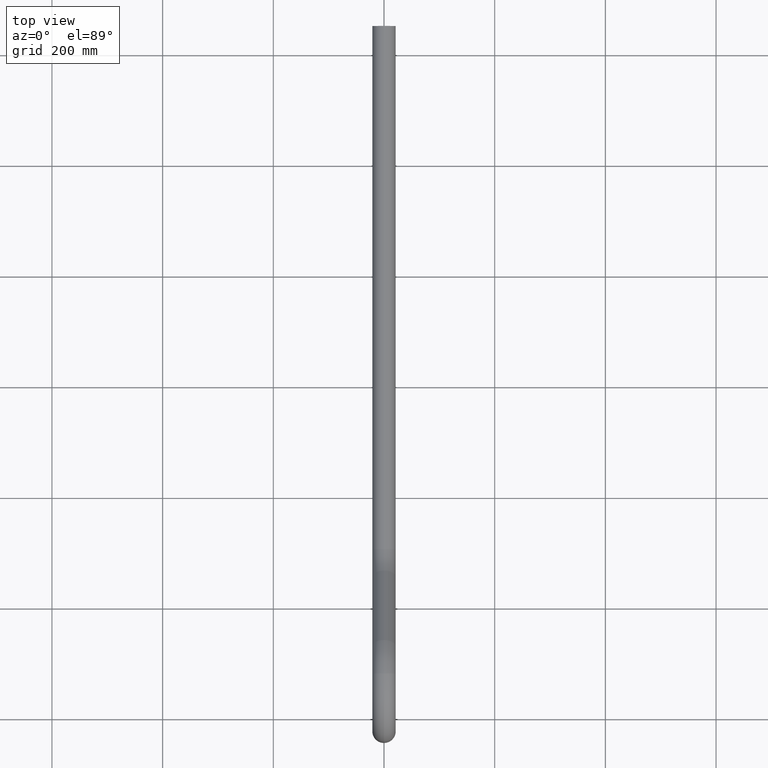
[diagram: clean part render]
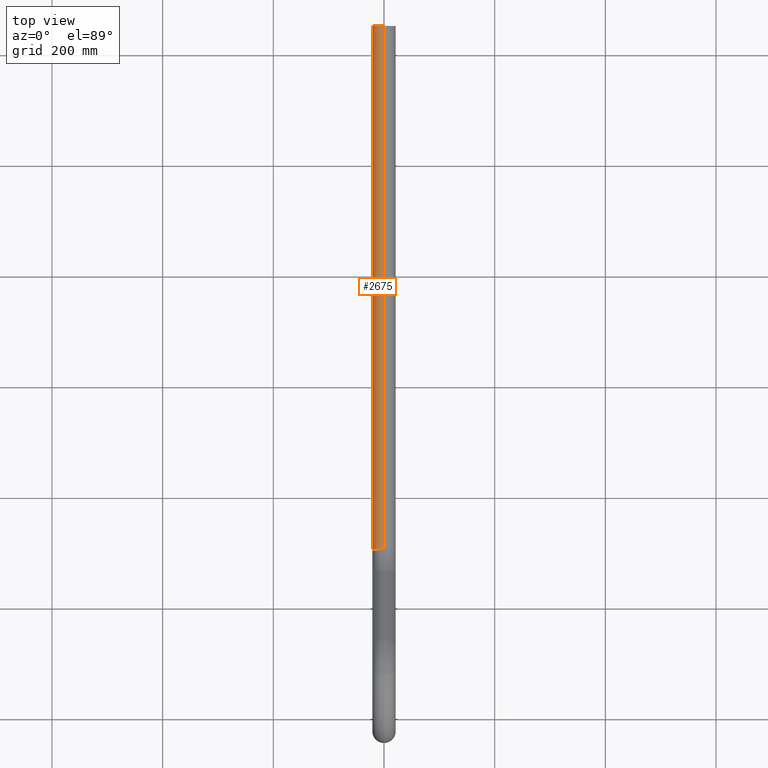
[diagram: same view with one face highlighted and labeled with its STEP entity id]
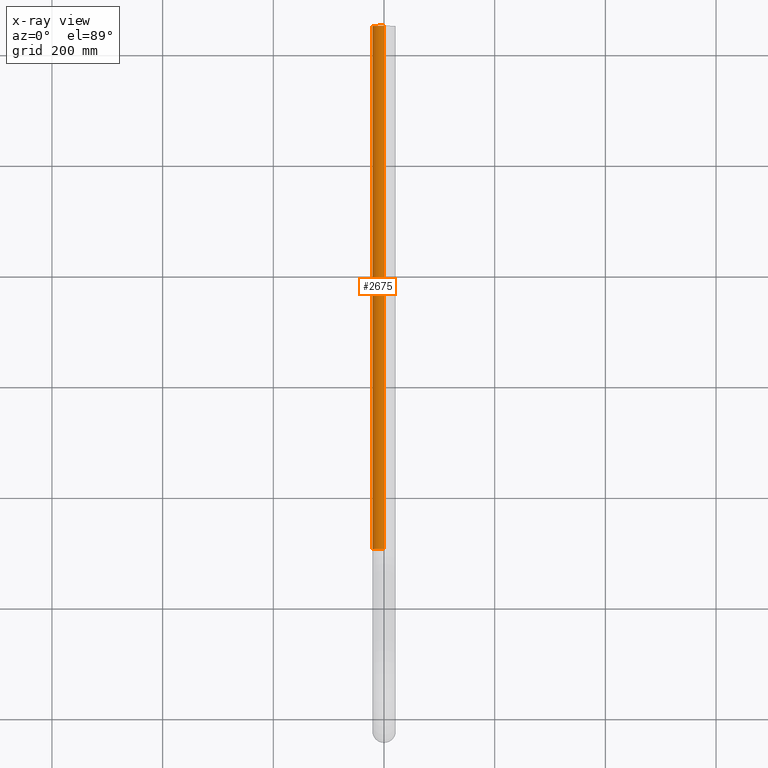
[diagram: x-ray of the same camera — body ghosted, the highlighted face saturated]
A machine part, top view. The second image highlights one B-rep face of the part: STEP entity #2675.
The next image is the same camera in x-ray: the body ghosted, the highlighted face saturated — about 0% of this face is hidden behind the body in this view.
In plain terms, the highlighted cylindrical surface (edge-blend (fillet) strip) has radius 21.2 mm, axis along (0, 1, 0).
Its self-contained STEP definition (entity closure, byte-faithful):
#379 = CIRCLE ( 'NONE', #2459, 21.19999999999999600 ) ;
#532 = CYLINDRICAL_SURFACE ( 'NONE', #872, 21.19999999999999600 ) ;
#595 = CIRCLE ( 'NONE', #6826, 21.19999999999999600 ) ;
#780 = ORIENTED_EDGE ( 'NONE', *, *, #8191, .F. ) ;
#872 = AXIS2_PLACEMENT_3D ( 'NONE', #968, #3436, #3611 ) ;
#959 = CARTESIAN_POINT ( 'NONE',  ( 2.596251214192391500E-015, 305.5949192431106700, 53.19999999999999600 ) ) ;
#968 = CARTESIAN_POINT ( 'NONE',  ( 0.0000000000000000000, 305.5949192431106700, 74.39999999999999100 ) ) ;
#1345 = CARTESIAN_POINT ( 'NONE',  ( 0.0000000000000000000, 1250.589999999998100, 95.60000000000003700 ) ) ;
#1700 = FACE_OUTER_BOUND ( 'NONE', #10590, .T. ) ;
#2459 = AXIS2_PLACEMENT_3D ( 'NONE', #9568, #5390, #2951 ) ;
#2675 = ADVANCED_FACE ( 'NONE', ( #1700 ), #532, .T. ) ;
#2951 = DIRECTION ( 'NONE',  ( 1.000000000000000000, 0.0000000000000000000, 0.0000000000000000000 ) ) ;
#3019 = EDGE_CURVE ( 'NONE', #6791, #10197, #9199, .T. ) ;
#3391 = ORIENTED_EDGE ( 'NONE', *, *, #3019, .T. ) ;
#3436 = DIRECTION ( 'NONE',  ( 0.0000000000000000000, 1.000000000000000000, 4.405669857042791700E-017 ) ) ;
#3526 = CARTESIAN_POINT ( 'NONE',  ( 2.596251214192389200E-015, 1250.589999999998100, 53.20000000000003800 ) ) ;
#3596 = DIRECTION ( 'NONE',  ( 1.000000000000000000, 0.0000000000000000000, 0.0000000000000000000 ) ) ;
#3611 = DIRECTION ( 'NONE',  ( 0.0000000000000000000, 0.0000000000000000000, 1.000000000000000000 ) ) ;
#3723 = EDGE_CURVE ( 'NONE', #6902, #6791, #379, .T. ) ;
#4198 = VERTEX_POINT ( 'NONE', #3526 ) ;
#5390 = DIRECTION ( 'NONE',  ( 0.0000000000000000000, 1.000000000000000000, 0.0000000000000000000 ) ) ;
#5520 = EDGE_CURVE ( 'NONE', #6902, #4198, #7453, .T. ) ;
#5760 = CARTESIAN_POINT ( 'NONE',  ( 0.0000000000000000000, 305.5949192431106700, 95.59999999999999400 ) ) ;
#5802 = VECTOR ( 'NONE', #7190, 1000.000000000000000 ) ;
#6371 = CARTESIAN_POINT ( 'NONE',  ( 2.596251214192388800E-015, 305.5949192431106700, 53.19999999999999600 ) ) ;
#6680 = ORIENTED_EDGE ( 'NONE', *, *, #5520, .F. ) ;
#6791 = VERTEX_POINT ( 'NONE', #10481 ) ;
#6826 = AXIS2_PLACEMENT_3D ( 'NONE', #6954, #7017, #3596 ) ;
#6902 = VERTEX_POINT ( 'NONE', #959 ) ;
#6954 = CARTESIAN_POINT ( 'NONE',  ( 0.0000000000000000000, 1250.589999999998100, 74.40000000000003400 ) ) ;
#6974 = VECTOR ( 'NONE', #8977, 1000.000000000000000 ) ;
#7017 = DIRECTION ( 'NONE',  ( 0.0000000000000000000, 1.000000000000000000, 0.0000000000000000000 ) ) ;
#7190 = DIRECTION ( 'NONE',  ( 0.0000000000000000000, 1.000000000000000000, 4.405669857042791700E-017 ) ) ;
#7453 = LINE ( 'NONE', #6371, #5802 ) ;
#8191 = EDGE_CURVE ( 'NONE', #4198, #10197, #595, .T. ) ;
#8977 = DIRECTION ( 'NONE',  ( 0.0000000000000000000, 1.000000000000000000, 4.405669857042791700E-017 ) ) ;
#9199 = LINE ( 'NONE', #5760, #6974 ) ;
#9478 = ORIENTED_EDGE ( 'NONE', *, *, #3723, .T. ) ;
#9568 = CARTESIAN_POINT ( 'NONE',  ( 0.0000000000000000000, 305.5949192431106700, 74.39999999999999100 ) ) ;
#10197 = VERTEX_POINT ( 'NONE', #1345 ) ;
#10481 = CARTESIAN_POINT ( 'NONE',  ( 0.0000000000000000000, 305.5949192431106700, 95.59999999999999400 ) ) ;
#10590 = EDGE_LOOP ( 'NONE', ( #6680, #9478, #3391, #780 ) ) ;